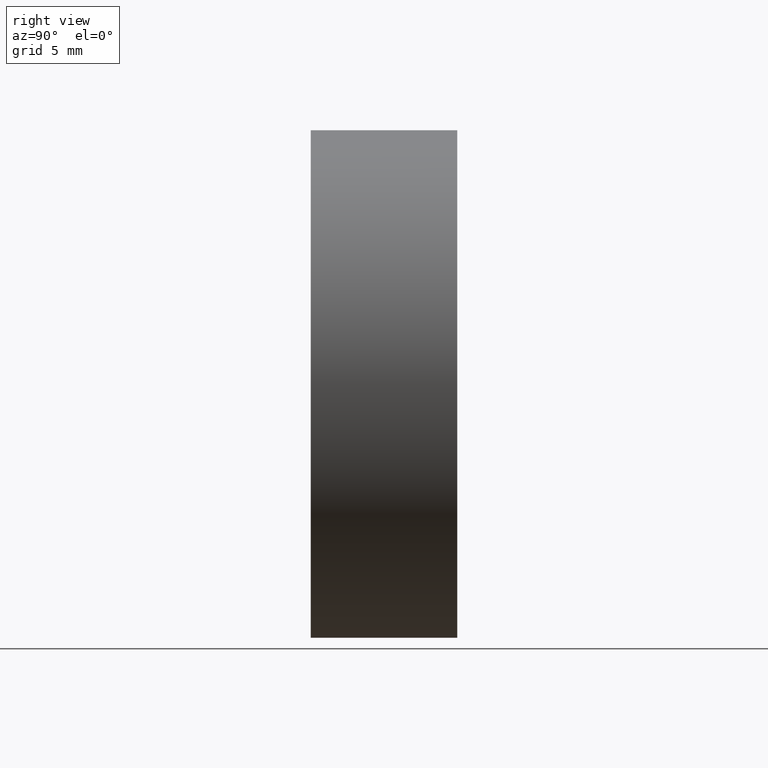
[diagram: clean part render]
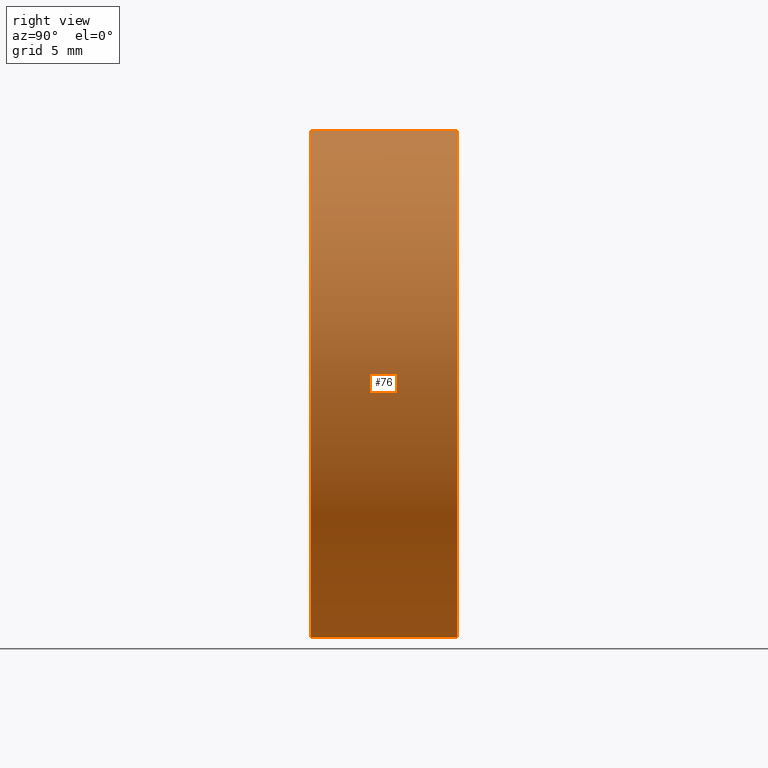
[diagram: same view with one face highlighted and labeled with its STEP entity id]
A machine part, right view. The second image highlights one B-rep face of the part: STEP entity #76.
In plain terms, the highlighted cylindrical surface (partial cylindrical patch) has radius 19.05 mm, axis along (-0, 1, -0).
Its self-contained STEP definition (entity closure, byte-faithful):
#6 = EDGE_CURVE ( 'NONE', #338, #81, #37, .T. ) ;
#9 = ORIENTED_EDGE ( 'NONE', *, *, #195, .F. ) ;
#37 = CIRCLE ( 'NONE', #146, 19.05000000000000400 ) ;
#46 = ORIENTED_EDGE ( 'NONE', *, *, #6, .T. ) ;
#76 = ADVANCED_FACE ( 'NONE', ( #399 ), #392, .T. ) ;
#81 = VERTEX_POINT ( 'NONE', #359 ) ;
#85 = CARTESIAN_POINT ( 'NONE',  ( 2.332952152375708400E-015, 10.99999999999999600, -19.05000000000000400 ) ) ;
#94 = LINE ( 'NONE', #345, #306 ) ;
#106 = DIRECTION ( 'NONE',  ( -0.0000000000000000000, 1.000000000000000000, -0.0000000000000000000 ) ) ;
#107 = CARTESIAN_POINT ( 'NONE',  ( 0.0000000000000000000, 60.02082041425541100, 0.0000000000000000000 ) ) ;
#109 = AXIS2_PLACEMENT_3D ( 'NONE', #292, #427, #364 ) ;
#112 = ORIENTED_EDGE ( 'NONE', *, *, #238, .T. ) ;
#146 = AXIS2_PLACEMENT_3D ( 'NONE', #229, #333, #207 ) ;
#155 = VERTEX_POINT ( 'NONE', #85 ) ;
#183 = CIRCLE ( 'NONE', #109, 19.05000000000000400 ) ;
#195 = EDGE_CURVE ( 'NONE', #383, #155, #183, .T. ) ;
#207 = DIRECTION ( 'NONE',  ( 0.0000000000000000000, 0.0000000000000000000, 1.000000000000000000 ) ) ;
#211 = CARTESIAN_POINT ( 'NONE',  ( 0.0000000000000000000, 60.02082041425541100, 19.05000000000000400 ) ) ;
#225 = LINE ( 'NONE', #211, #256 ) ;
#226 = EDGE_LOOP ( 'NONE', ( #46, #112, #9, #242 ) ) ;
#229 = CARTESIAN_POINT ( 'NONE',  ( 0.0000000000000000000, 0.0000000000000000000, 0.0000000000000000000 ) ) ;
#231 = CARTESIAN_POINT ( 'NONE',  ( 0.0000000000000000000, 10.99999999999999600, 19.05000000000000400 ) ) ;
#238 = EDGE_CURVE ( 'NONE', #81, #155, #94, .T. ) ;
#242 = ORIENTED_EDGE ( 'NONE', *, *, #268, .F. ) ;
#245 = DIRECTION ( 'NONE',  ( -0.0000000000000000000, 1.000000000000000000, -0.0000000000000000000 ) ) ;
#256 = VECTOR ( 'NONE', #106, 1000.000000000000000 ) ;
#258 = CARTESIAN_POINT ( 'NONE',  ( 0.0000000000000000000, 0.0000000000000000000, 19.05000000000000400 ) ) ;
#268 = EDGE_CURVE ( 'NONE', #338, #383, #225, .T. ) ;
#292 = CARTESIAN_POINT ( 'NONE',  ( 0.0000000000000000000, 10.99999999999999600, 0.0000000000000000000 ) ) ;
#306 = VECTOR ( 'NONE', #245, 1000.000000000000000 ) ;
#311 = DIRECTION ( 'NONE',  ( 0.0000000000000000000, 0.0000000000000000000, 1.000000000000000000 ) ) ;
#333 = DIRECTION ( 'NONE',  ( -0.0000000000000000000, 1.000000000000000000, -0.0000000000000000000 ) ) ;
#338 = VERTEX_POINT ( 'NONE', #258 ) ;
#345 = CARTESIAN_POINT ( 'NONE',  ( 2.332952152375708400E-015, 60.02082041425541100, -19.05000000000000400 ) ) ;
#352 = DIRECTION ( 'NONE',  ( -0.0000000000000000000, 1.000000000000000000, -0.0000000000000000000 ) ) ;
#359 = CARTESIAN_POINT ( 'NONE',  ( 2.332952152375708400E-015, 0.0000000000000000000, -19.05000000000000400 ) ) ;
#364 = DIRECTION ( 'NONE',  ( 0.0000000000000000000, 0.0000000000000000000, 1.000000000000000000 ) ) ;
#376 = AXIS2_PLACEMENT_3D ( 'NONE', #107, #352, #311 ) ;
#383 = VERTEX_POINT ( 'NONE', #231 ) ;
#392 = CYLINDRICAL_SURFACE ( 'NONE', #376, 19.05000000000000400 ) ;
#399 = FACE_OUTER_BOUND ( 'NONE', #226, .T. ) ;
#427 = DIRECTION ( 'NONE',  ( -0.0000000000000000000, 1.000000000000000000, -0.0000000000000000000 ) ) ;